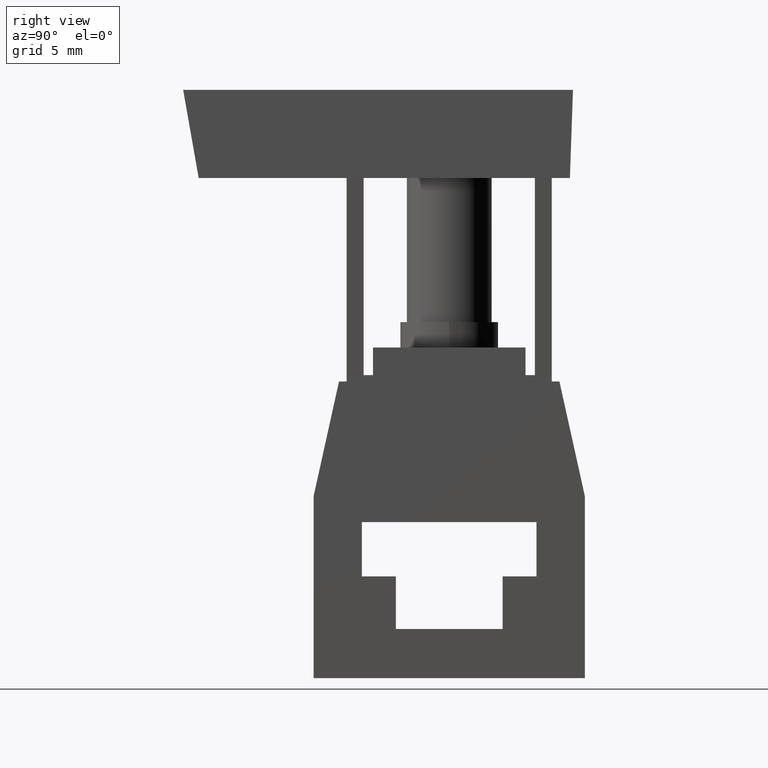
[diagram: clean part render]
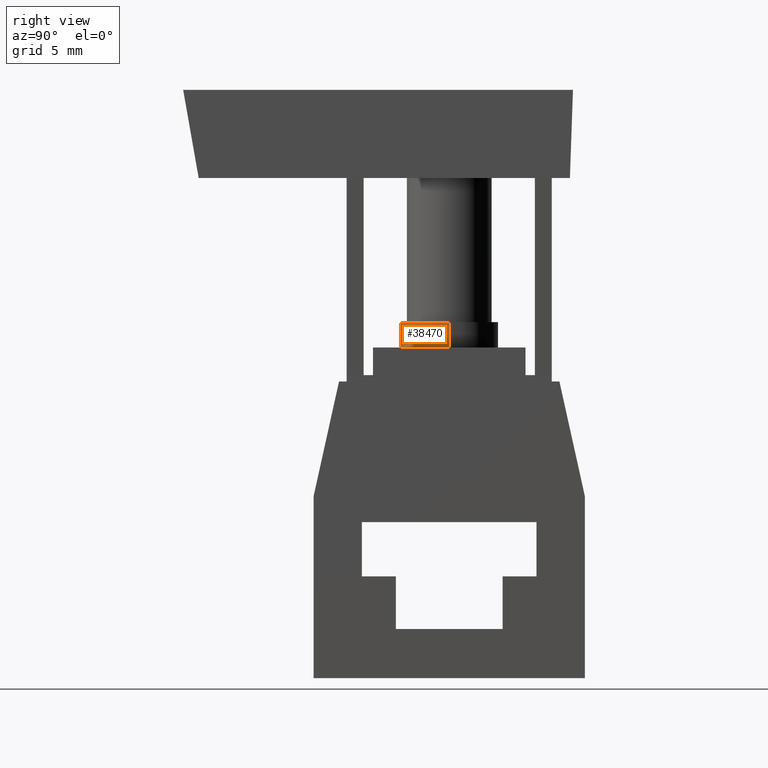
[diagram: same view with one face highlighted and labeled with its STEP entity id]
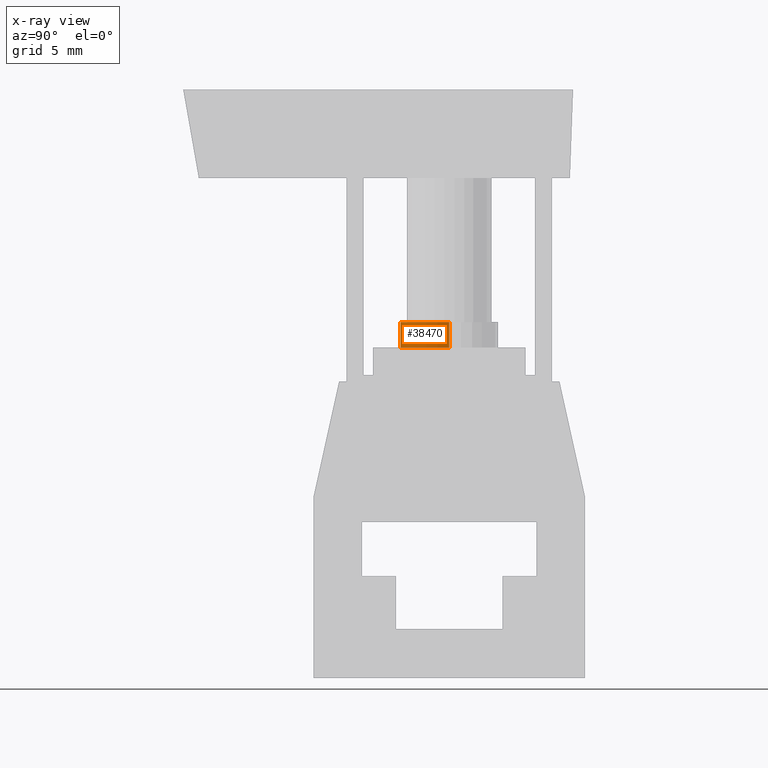
[diagram: x-ray of the same camera — body ghosted, the highlighted face saturated]
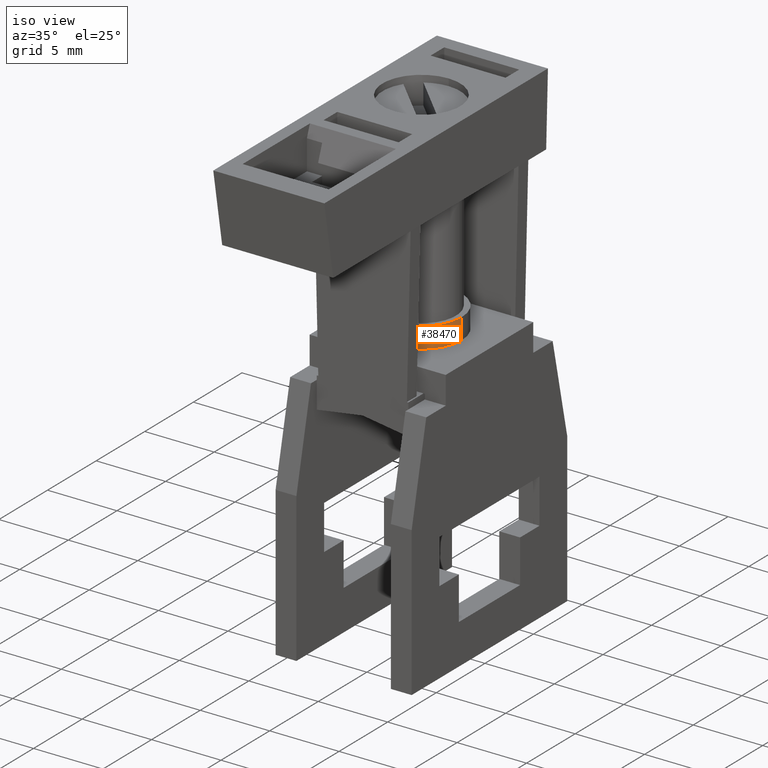
[diagram: same view with one face highlighted and labeled with its STEP entity id]
A machine part, right view. The second image highlights one B-rep face of the part: STEP entity #38470.
The next image is the same camera in x-ray: the body ghosted, the highlighted face saturated — about 0% of this face is hidden behind the body in this view.
A second angle (iso view) of the same face is appended — the face is thin or edge-on in the first view.
In plain terms, the highlighted cylindrical surface (partial cylindrical patch) has radius 2.9 mm, axis along (0, 0, 1).
Its self-contained STEP definition (entity closure, byte-faithful):
#11120=CARTESIAN_POINT('',(-4.90000000000001,21.,8.));
#11130=DIRECTION('',(0.,1.,0.));
#11140=DIRECTION('',(-1.,0.,0.));
#11150=AXIS2_PLACEMENT_3D('',#11120,#11130,#11140);
#11160=CIRCLE('',#11150,2.89999999999999);
#11170=CARTESIAN_POINT('',(-7.8,21.,8.));
#11180=VERTEX_POINT('',#11170);
#11190=CARTESIAN_POINT('',(-2.00000000000001,21.,8.));
#11200=VERTEX_POINT('',#11190);
#11210=EDGE_CURVE('',#11180,#11200,#11160,.T.);
#11400=CARTESIAN_POINT('',(-7.8,19.5,8.));
#11410=DIRECTION('',(0.,1.,0.));
#11420=VECTOR('',#11410,1.);
#11430=LINE('',#11400,#11420);
#11440=CARTESIAN_POINT('',(-7.8,19.5,8.));
#11450=VERTEX_POINT('',#11440);
#11460=EDGE_CURVE('',#11450,#11180,#11430,.T.);
#11480=CARTESIAN_POINT('',(-4.90000000000001,19.5,8.));
#11490=DIRECTION('',(0.,1.,0.));
#11500=DIRECTION('',(-1.,0.,0.));
#11510=AXIS2_PLACEMENT_3D('',#11480,#11490,#11500);
#11520=CIRCLE('',#11510,2.89999999999999);
#11530=CARTESIAN_POINT('',(-2.00000000000001,19.5,8.));
#11540=VERTEX_POINT('',#11530);
#11570=CARTESIAN_POINT('',(-2.00000000000001,19.5,8.));
#11580=DIRECTION('',(0.,1.,0.));
#11590=VECTOR('',#11580,1.);
#11600=LINE('',#11570,#11590);
#11610=EDGE_CURVE('',#11540,#11200,#11600,.T.);
#11790=EDGE_CURVE('',#11450,#11540,#11520,.T.);
#38360=CARTESIAN_POINT('',(-4.90000000000001,19.5,8.));
#38370=DIRECTION('',(0.,1.,0.));
#38380=DIRECTION('',(-1.,0.,0.));
#38390=AXIS2_PLACEMENT_3D('',#38360,#38370,#38380);
#38400=CYLINDRICAL_SURFACE('',#38390,2.89999999999999);
#38410=ORIENTED_EDGE('',*,*,#11210,.F.);
#38420=ORIENTED_EDGE('',*,*,#11610,.T.);
#38430=ORIENTED_EDGE('',*,*,#11790,.T.);
#38440=ORIENTED_EDGE('',*,*,#11460,.F.);
#38450=EDGE_LOOP('',(#38440,#38430,#38420,#38410));
#38460=FACE_OUTER_BOUND('',#38450,.T.);
#38470=ADVANCED_FACE('',(#38460),#38400,.T.);